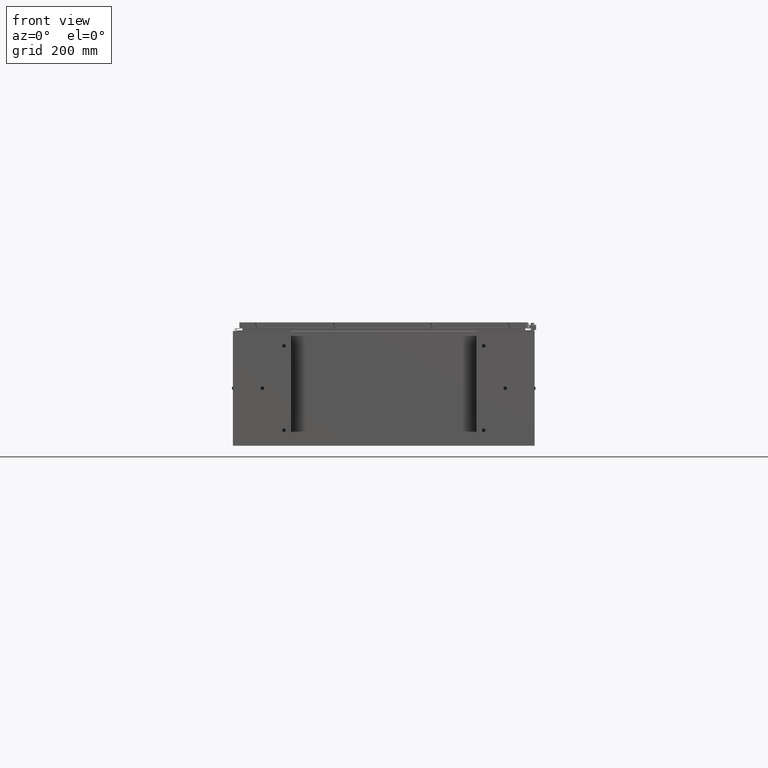
[diagram: clean part render]
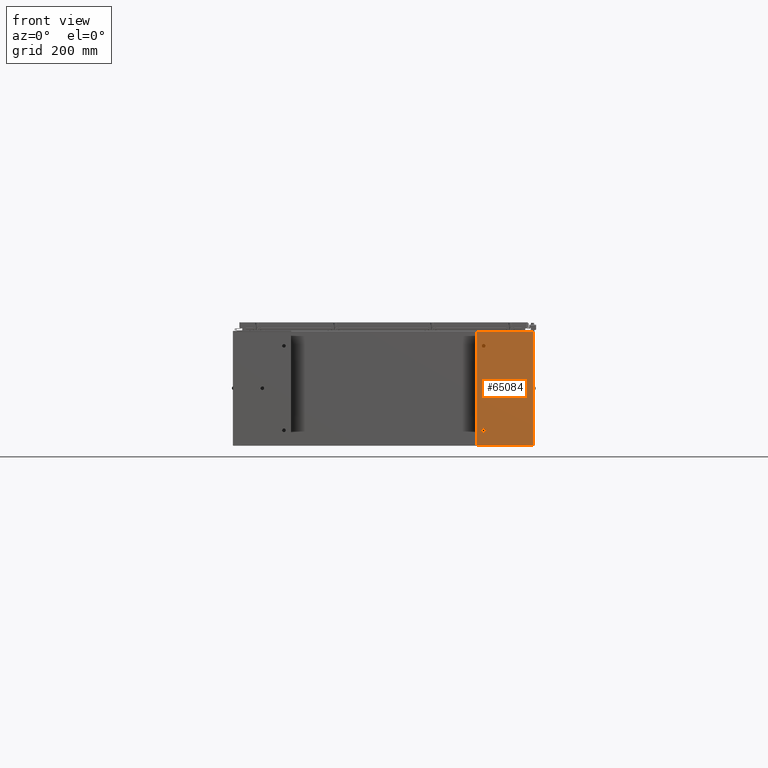
[diagram: same view with one face highlighted and labeled with its STEP entity id]
A machine part, front view. The second image highlights one B-rep face of the part: STEP entity #65084.
In plain terms, the highlighted planar face has unit normal (-0, -1, -0).
Its self-contained STEP definition (entity closure, byte-faithful):
#2312 = VERTEX_POINT ( 'NONE', #33889 ) ;
#3103 = DIRECTION ( 'NONE',  ( -1.000000000000000000, 0.0000000000000000000, 0.0000000000000000000 ) ) ;
#3109 = VERTEX_POINT ( 'NONE', #63138 ) ;
#8053 = LINE ( 'NONE', #56164, #23718 ) ;
#8441 = CARTESIAN_POINT ( 'NONE',  ( 7.879000000000000400, 4.000000000000000000, -0.1050000000000000000 ) ) ;
#8705 = CARTESIAN_POINT ( 'NONE',  ( -7.878999999999998700, 4.000000000000000000, -0.1050000000000000000 ) ) ;
#11048 = CARTESIAN_POINT ( 'NONE',  ( 5.878999999999999600, -2.999999999999999600, -0.1050000000000000000 ) ) ;
#11246 = CIRCLE ( 'NONE', #48271, 0.2499999999999998100 ) ;
#12207 = CARTESIAN_POINT ( 'NONE',  ( 0.2500000000000000000, 0.0000000000000000000, -0.1050000000000000000 ) ) ;
#12846 = DIRECTION ( 'NONE',  ( -0.0000000000000000000, -0.0000000000000000000, 1.000000000000000000 ) ) ;
#13895 = VERTEX_POINT ( 'NONE', #12207 ) ;
#14375 = DIRECTION ( 'NONE',  ( -1.000000000000000000, 0.0000000000000000000, -0.0000000000000000000 ) ) ;
#14468 = EDGE_CURVE ( 'NONE', #28607, #41391, #20714, .T. ) ;
#15554 = CARTESIAN_POINT ( 'NONE',  ( 5.628999999999999600, -2.999999999999999600, -0.1050000000000000000 ) ) ;
#15737 = CARTESIAN_POINT ( 'NONE',  ( -7.878999999999998700, -4.000000000000000000, -0.1050000000000000000 ) ) ;
#15951 = VERTEX_POINT ( 'NONE', #33680 ) ;
#16185 = FACE_BOUND ( 'NONE', #39132, .T. ) ;
#16411 = ORIENTED_EDGE ( 'NONE', *, *, #63221, .F. ) ;
#16997 = DIRECTION ( 'NONE',  ( -1.000000000000000000, 0.0000000000000000000, 0.0000000000000000000 ) ) ;
#17060 = CARTESIAN_POINT ( 'NONE',  ( -7.878999999999998700, 4.000000000000000000, -0.1050000000000000000 ) ) ;
#17427 = DIRECTION ( 'NONE',  ( 0.0000000000000000000, 1.000000000000000000, 0.0000000000000000000 ) ) ;
#17592 = EDGE_LOOP ( 'NONE', ( #63973, #49428 ) ) ;
#17840 = VERTEX_POINT ( 'NONE', #29053 ) ;
#17877 = DIRECTION ( 'NONE',  ( -0.0000000000000000000, -0.0000000000000000000, 1.000000000000000000 ) ) ;
#19473 = CARTESIAN_POINT ( 'NONE',  ( 5.878999999999999600, -2.999999999999999600, -0.1050000000000000000 ) ) ;
#19645 = ORIENTED_EDGE ( 'NONE', *, *, #64390, .F. ) ;
#20714 = LINE ( 'NONE', #37013, #50195 ) ;
#20980 = DIRECTION ( 'NONE',  ( -0.0000000000000000000, -1.000000000000000000, -0.0000000000000000000 ) ) ;
#21208 = VERTEX_POINT ( 'NONE', #51648 ) ;
#23718 = VECTOR ( 'NONE', #20980, 39.37007874015748100 ) ;
#24014 = CIRCLE ( 'NONE', #54361, 0.2499999999999998100 ) ;
#25163 = ORIENTED_EDGE ( 'NONE', *, *, #75001, .F. ) ;
#25343 = DIRECTION ( 'NONE',  ( -1.000000000000000000, 0.0000000000000000000, 0.0000000000000000000 ) ) ;
#25648 = CIRCLE ( 'NONE', #73370, 0.2499999999999998100 ) ;
#25781 = VECTOR ( 'NONE', #26448, 39.37007874015748100 ) ;
#26448 = DIRECTION ( 'NONE',  ( -1.000000000000000000, -0.0000000000000000000, -0.0000000000000000000 ) ) ;
#27646 = LINE ( 'NONE', #8705, #25781 ) ;
#28607 = VERTEX_POINT ( 'NONE', #60382 ) ;
#29053 = CARTESIAN_POINT ( 'NONE',  ( -5.628999999999999600, -2.999999999999999600, -0.1050000000000000000 ) ) ;
#29522 = VERTEX_POINT ( 'NONE', #15554 ) ;
#31558 = CIRCLE ( 'NONE', #42858, 0.2499999999999998100 ) ;
#31690 = PLANE ( 'NONE',  #72181 ) ;
#31929 = FACE_BOUND ( 'NONE', #60098, .T. ) ;
#32413 = ORIENTED_EDGE ( 'NONE', *, *, #69447, .F. ) ;
#32686 = CARTESIAN_POINT ( 'NONE',  ( -5.878999999999999600, -2.999999999999999600, -0.1050000000000000000 ) ) ;
#33680 = CARTESIAN_POINT ( 'NONE',  ( -0.2500000000000000000, 3.061616997868383000E-017, -0.1050000000000000000 ) ) ;
#33889 = CARTESIAN_POINT ( 'NONE',  ( -6.128999999999998700, -2.999999999999999600, -0.1050000000000000000 ) ) ;
#37013 = CARTESIAN_POINT ( 'NONE',  ( 7.879000000000000400, -4.000000000000000000, -0.1050000000000000000 ) ) ;
#37586 = ORIENTED_EDGE ( 'NONE', *, *, #14468, .F. ) ;
#38042 = VERTEX_POINT ( 'NONE', #17060 ) ;
#38512 = DIRECTION ( 'NONE',  ( -0.0000000000000000000, -0.0000000000000000000, 1.000000000000000000 ) ) ;
#38545 = DIRECTION ( 'NONE',  ( -1.000000000000000000, 0.0000000000000000000, 0.0000000000000000000 ) ) ;
#39132 = EDGE_LOOP ( 'NONE', ( #25163, #16411 ) ) ;
#40613 = CARTESIAN_POINT ( 'NONE',  ( 7.879000000000000400, 4.000000000000000000, -0.1050000000000000000 ) ) ;
#41391 = VERTEX_POINT ( 'NONE', #40613 ) ;
#42400 = AXIS2_PLACEMENT_3D ( 'NONE', #48130, #12846, #53970 ) ;
#42858 = AXIS2_PLACEMENT_3D ( 'NONE', #53053, #17877, #58940 ) ;
#48130 = CARTESIAN_POINT ( 'NONE',  ( 0.0000000000000000000, 0.0000000000000000000, -0.1050000000000000000 ) ) ;
#48271 = AXIS2_PLACEMENT_3D ( 'NONE', #19473, #60552, #25343 ) ;
#48323 = FACE_OUTER_BOUND ( 'NONE', #54077, .T. ) ;
#49428 = ORIENTED_EDGE ( 'NONE', *, *, #63453, .T. ) ;
#49657 = DIRECTION ( 'NONE',  ( 0.0000000000000000000, 0.0000000000000000000, -1.000000000000000000 ) ) ;
#50195 = VECTOR ( 'NONE', #17427, 39.37007874015748100 ) ;
#50980 = DIRECTION ( 'NONE',  ( 1.000000000000000000, 0.0000000000000000000, 0.0000000000000000000 ) ) ;
#51648 = CARTESIAN_POINT ( 'NONE',  ( -7.878999999999998700, -4.000000000000000000, -0.1050000000000000000 ) ) ;
#52185 = DIRECTION ( 'NONE',  ( 0.0000000000000000000, 0.0000000000000000000, -1.000000000000000000 ) ) ;
#53053 = CARTESIAN_POINT ( 'NONE',  ( -5.878999999999999600, -2.999999999999999600, -0.1050000000000000000 ) ) ;
#53970 = DIRECTION ( 'NONE',  ( -1.000000000000000000, 0.0000000000000000000, 0.0000000000000000000 ) ) ;
#54077 = EDGE_LOOP ( 'NONE', ( #37586, #68925, #32413, #19645 ) ) ;
#54361 = AXIS2_PLACEMENT_3D ( 'NONE', #32686, #73976, #38545 ) ;
#54909 = ORIENTED_EDGE ( 'NONE', *, *, #60622, .T. ) ;
#56158 = CIRCLE ( 'NONE', #42400, 0.2500000000000000000 ) ;
#56164 = CARTESIAN_POINT ( 'NONE',  ( -7.878999999999998700, -4.000000000000000000, -0.1050000000000000000 ) ) ;
#58940 = DIRECTION ( 'NONE',  ( -1.000000000000000000, 0.0000000000000000000, 0.0000000000000000000 ) ) ;
#60098 = EDGE_LOOP ( 'NONE', ( #54909, #62501 ) ) ;
#60382 = CARTESIAN_POINT ( 'NONE',  ( 7.879000000000000400, -4.000000000000000000, -0.1050000000000000000 ) ) ;
#60552 = DIRECTION ( 'NONE',  ( 0.0000000000000000000, 0.0000000000000000000, -1.000000000000000000 ) ) ;
#60622 = EDGE_CURVE ( 'NONE', #13895, #15951, #67215, .T. ) ;
#62501 = ORIENTED_EDGE ( 'NONE', *, *, #64159, .T. ) ;
#63110 = FACE_BOUND ( 'NONE', #17592, .T. ) ;
#63138 = CARTESIAN_POINT ( 'NONE',  ( 6.128999999999998700, -2.999999999999999600, -0.1050000000000000000 ) ) ;
#63221 = EDGE_CURVE ( 'NONE', #29522, #3109, #11246, .T. ) ;
#63453 = EDGE_CURVE ( 'NONE', #2312, #17840, #31558, .T. ) ;
#63973 = ORIENTED_EDGE ( 'NONE', *, *, #67758, .T. ) ;
#64159 = EDGE_CURVE ( 'NONE', #15951, #13895, #56158, .T. ) ;
#64390 = EDGE_CURVE ( 'NONE', #41391, #38042, #27646, .T. ) ;
#65084 = ADVANCED_FACE ( 'NONE', ( #48323, #31929, #63110, #16185 ), #31690, .T. ) ;
#67215 = CIRCLE ( 'NONE', #70921, 0.2500000000000000000 ) ;
#67758 = EDGE_CURVE ( 'NONE', #17840, #2312, #24014, .T. ) ;
#67764 = VECTOR ( 'NONE', #50980, 39.37007874015748100 ) ;
#68925 = ORIENTED_EDGE ( 'NONE', *, *, #71525, .F. ) ;
#69447 = EDGE_CURVE ( 'NONE', #38042, #21208, #8053, .T. ) ;
#70921 = AXIS2_PLACEMENT_3D ( 'NONE', #73928, #38512, #3103 ) ;
#71525 = EDGE_CURVE ( 'NONE', #21208, #28607, #71535, .T. ) ;
#71535 = LINE ( 'NONE', #15737, #67764 ) ;
#72181 = AXIS2_PLACEMENT_3D ( 'NONE', #8441, #49657, #14375 ) ;
#73370 = AXIS2_PLACEMENT_3D ( 'NONE', #11048, #52185, #16997 ) ;
#73928 = CARTESIAN_POINT ( 'NONE',  ( 0.0000000000000000000, 0.0000000000000000000, -0.1050000000000000000 ) ) ;
#73976 = DIRECTION ( 'NONE',  ( -0.0000000000000000000, -0.0000000000000000000, 1.000000000000000000 ) ) ;
#75001 = EDGE_CURVE ( 'NONE', #3109, #29522, #25648, .T. ) ;